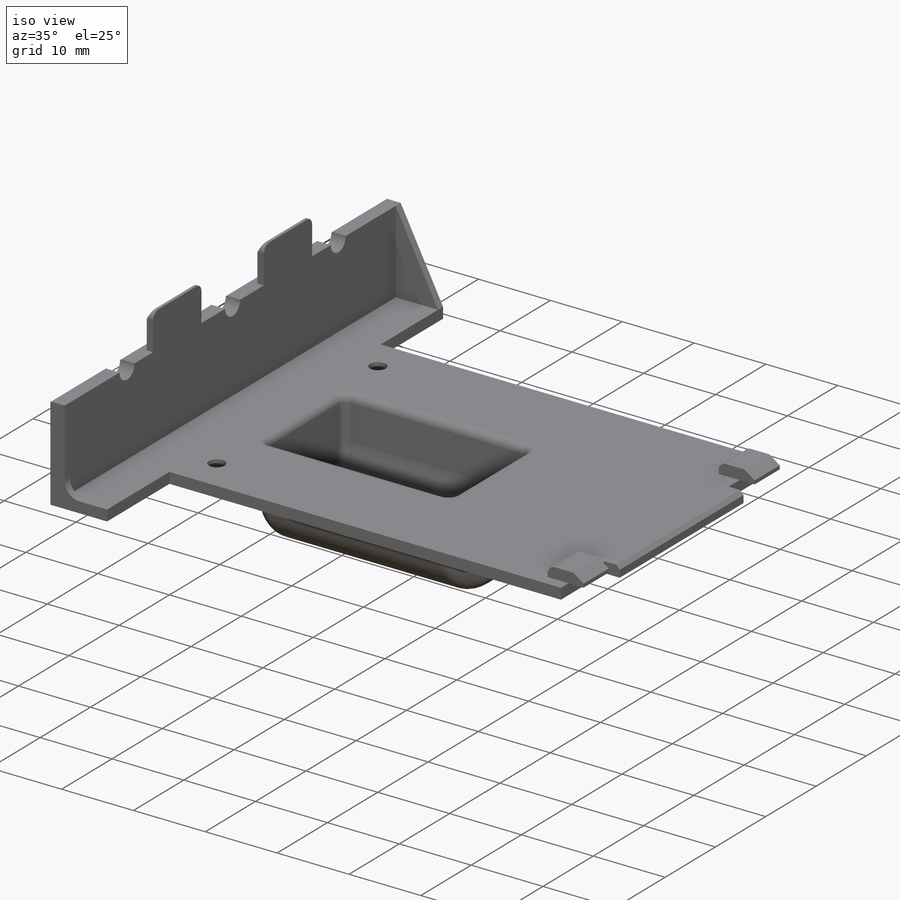
[diagram: iso view]
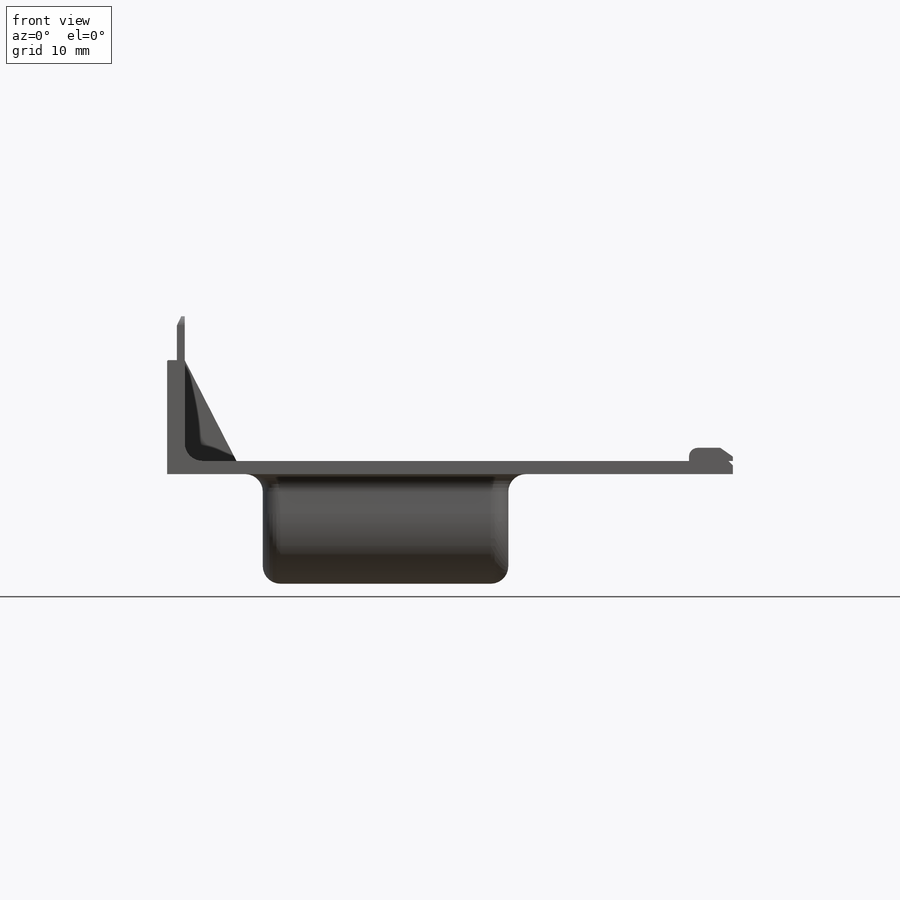
[diagram: front view]
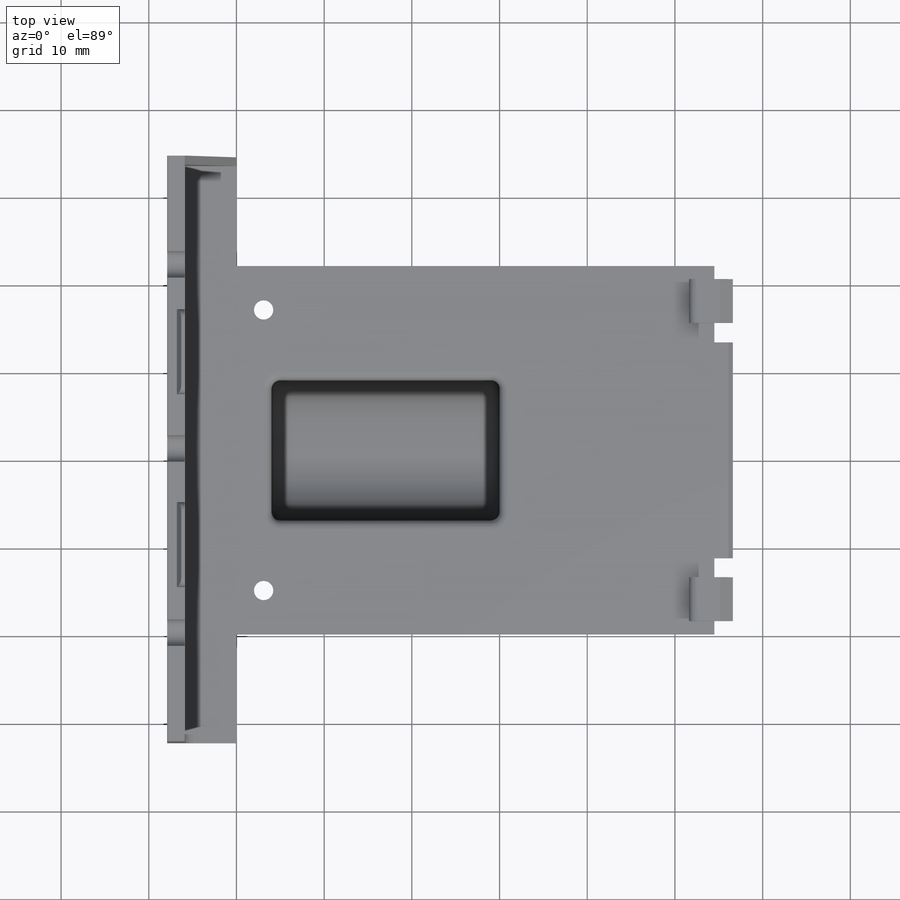
[diagram: top view]
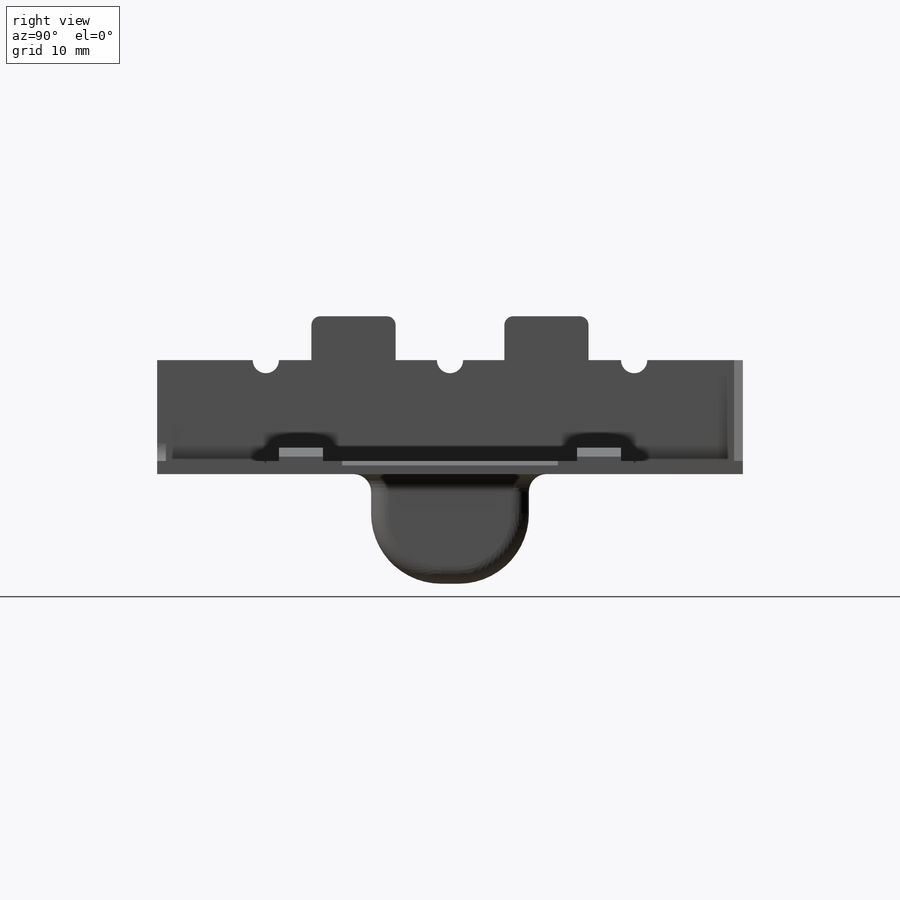
[diagram: right view]
SOLIDWORKS PART (.sldprt)
format: sldprt  version: not decoded by parser v0  size: 647,168 bytes
history: native  units: mm
features: sketch x16, extrude x12, fillet x6, chamfer x5, cut_extrude x4, material x1 (+13 scaffold rows collapsed)
feature tree (57):
  scaffold x13  (default folders/planes/origin — collapsed)
  material  "PE High Density"
  sketch  "Sketch1"  dims[D1=42.0mm D2=54.5mm]
  extrude  "Boss-Extrude1"  Depth=1.5mm
  sketch  "Sketch2"  dims[D1=16.0mm D2=30.0mm]
  cut_extrude  "Cut-Extrude1"  [1 undecoded]
  sketch  "Sketch3"  dims[D1=7.0mm D2=11.5mm D3=1.0mm]
  extrude  "Boss-Extrude2"  Depth=4mm
  sketch  "Sketch4"  dims[D1=0.0mm]
  extrude  "Boss-Extrude3"  Depth=1mm
  extrude  "Boss-Extrude5"  [1 undecoded]
  sketch  "Sketch4<2>"  dims[D1=1.0mm]
  fillet  "Fillet1"  Radius=1mm
  fillet  "Fillet2"  Radius=2mm
  sketch  "Sketch5"  dims[D1=0.0mm]
  extrude  "Boss-Extrude6"  [1 undecoded]
  sketch  "Sketch6"  dims[D1=66.8mm D2=7.9mm]
  extrude  "Boss-Extrude7"  [1 undecoded]
  sketch  "Sketch7"  dims[D1=2.0mm]
  extrude  "Boss-Extrude8"  Depth=11.5mm
  sketch  "Sketch8"
  cut_extrude  "Cut-Extrude2"  [1 undecoded]
  sketch  "Sketch9"  dims[D1=0.2mm D2=0.2mm D3=0.9mm]
  extrude  "Boss-Extrude9"  Depth=5mm
  chamfer  "Chamfer1"  Distance=0.5mm Angle=65deg
  fillet  "Fillet3"  Radius=1mm
  sketch  "Sketch10"  dims[D1=2.2mm]
  cut_extrude  "Cut-Extrude3"  [1 undecoded]
  sketch  "Sketch11"  dims[D1=0.2mm D2=0.2mm]
  extrude  "Boss-Extrude10"  [1 undecoded]
  sketch  "Sketch12"
  extrude  "Boss-Extrude11"  Depth=1mm
  sketch  "Sketch13"
  extrude  "Boss-Extrude12"  Depth=1mm
  sketch  "Sketch14"  dims[D1=5.0mm D2=5.0mm D3=29.0mm]
  extrude  "Boss-Extrude13"  Depth=1.5mm
  chamfer  "Chamfer2"  Distance=1mm Angle=55deg
  fillet  "Fillet4"  Radius=1mm
  chamfer  "Chamfer3"  Distance=1mm Angle=45deg
  fillet  "Fillet5"  Radius=2mm
  fillet  "Fillet6"  Radius=1mm
  chamfer  "Chamfer4"  Distance=0.5mm Angle=45deg
  chamfer  "Chamfer5"  Distance=0.1mm Angle=45deg
  sketch  "Sketch15"
  cut_extrude  "Cut-Extrude4"  [1 undecoded]
decode coverage: 31 of 43 modeling features carry decoded parameters
note: 8 parameter values undecoded
summary: no parameter record found for 8 features
note: suppression state not decoded; provenance and decode notes live in map.json
